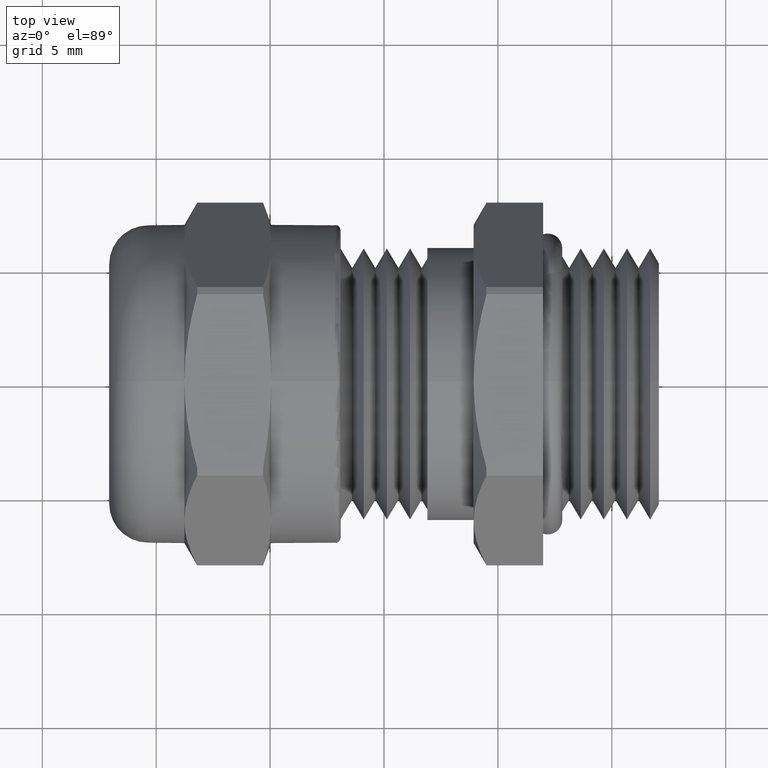
[diagram: clean part render]
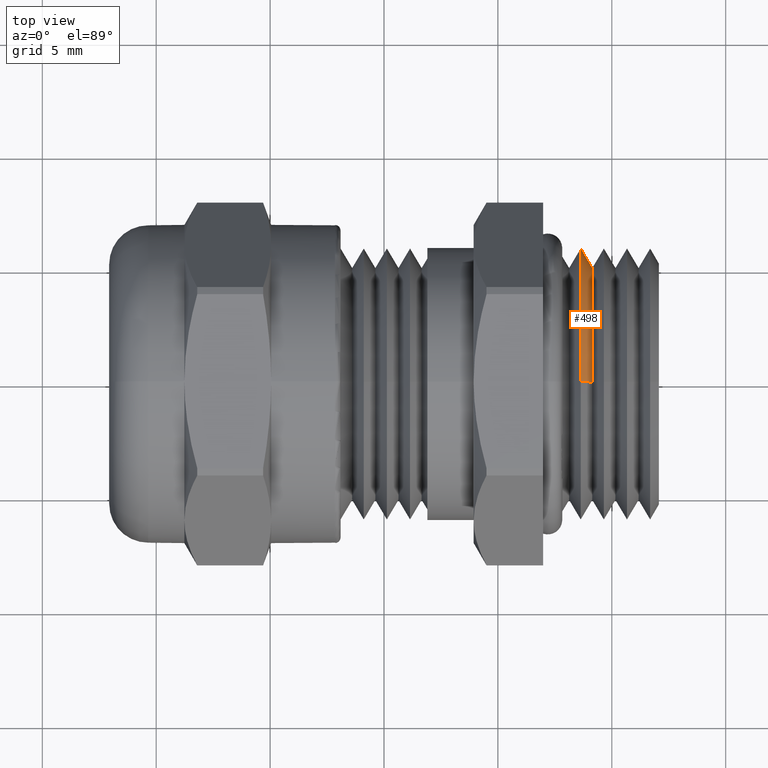
[diagram: same view with one face highlighted and labeled with its STEP entity id]
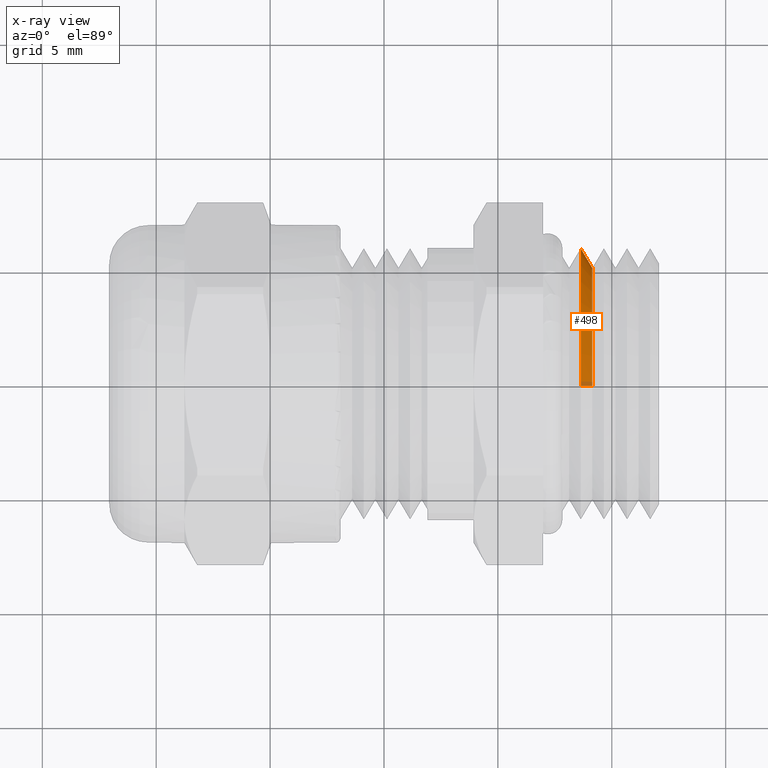
[diagram: x-ray of the same camera — body ghosted, the highlighted face saturated]
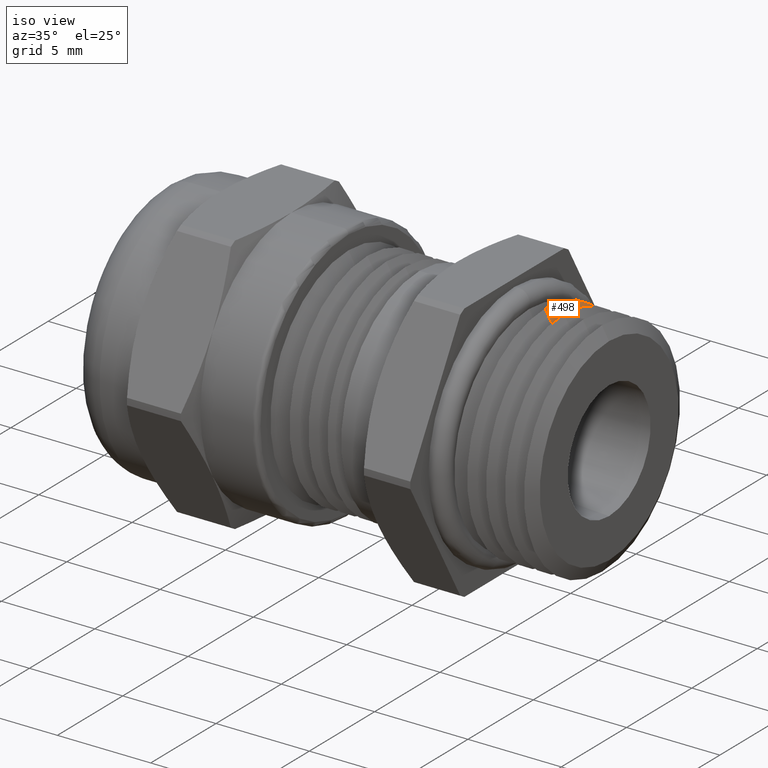
[diagram: same view with one face highlighted and labeled with its STEP entity id]
A machine part, top view. The second image highlights one B-rep face of the part: STEP entity #498.
The next image is the same camera in x-ray: the body ghosted, the highlighted face saturated — about 3% of this face is hidden behind the body in this view.
A second angle (iso view) of the same face is appended — the face is thin or edge-on in the first view.
In plain terms, the highlighted conical surface has half-angle 60.001 deg.
Its self-contained STEP definition (entity closure, byte-faithful):
#27 = VERTEX_POINT ( 'NONE', #1248 ) ;
#28 = EDGE_CURVE ( 'NONE', #29, #27, #1247, .T. ) ;
#29 = VERTEX_POINT ( 'NONE', #1242 ) ;
#339 = EDGE_LOOP ( 'NONE', ( #340, #341, #344, #347 ) ) ;
#340 = ORIENTED_EDGE ( 'NONE', *, *, #28, .T. ) ;
#341 = ORIENTED_EDGE ( 'NONE', *, *, #342, .T. ) ;
#342 = EDGE_CURVE ( 'NONE', #27, #343, #1874, .T. ) ;
#343 = VERTEX_POINT ( 'NONE', #1870 ) ;
#344 = ORIENTED_EDGE ( 'NONE', *, *, #345, .T. ) ;
#345 = EDGE_CURVE ( 'NONE', #343, #346, #1869, .T. ) ;
#346 = VERTEX_POINT ( 'NONE', #1864 ) ;
#347 = ORIENTED_EDGE ( 'NONE', *, *, #348, .F. ) ;
#348 = EDGE_CURVE ( 'NONE', #29, #346, #1863, .T. ) ;
#498 = ADVANCED_FACE ( 'NONE', ( #2171 ), #2169, .T. ) ;
#1242 = CARTESIAN_POINT ( 'NONE',  ( 0.3599993954002118100, 0.0000000000000000000, 0.2003581984504589900 ) ) ;
#1243 = DIRECTION ( 'NONE',  ( 0.0000000000000000000, 0.0000000000000000000, 1.000000000000000000 ) ) ;
#1244 = DIRECTION ( 'NONE',  ( -1.000000000000000000, 0.0000000000000000000, 0.0000000000000000000 ) ) ;
#1245 = CARTESIAN_POINT ( 'NONE',  ( 0.3599993954002118100, 0.0000000000000000000, 0.0000000000000000000 ) ) ;
#1246 = AXIS2_PLACEMENT_3D ( 'NONE', #1245, #1244, #1243 ) ;
#1247 = CIRCLE ( 'NONE', #1246, 0.2003581984504589900 ) ;
#1248 = CARTESIAN_POINT ( 'NONE',  ( 0.3599993954002118100, 2.665793174442872400E-017, -0.2003581984504589900 ) ) ;
#1860 = DIRECTION ( 'NONE',  ( -0.4999848849291451700, 0.0000000000000000000, 0.8660341302987946100 ) ) ;
#1861 = VECTOR ( 'NONE', #1860, 39.37007874015748900 ) ;
#1862 = CARTESIAN_POINT ( 'NONE',  ( 0.3399999999999999100, 0.0000000000000000000, 0.2349995636676869300 ) ) ;
#1863 = LINE ( 'NONE', #1862, #1861 ) ;
#1864 = CARTESIAN_POINT ( 'NONE',  ( 0.3400004030543404800, 0.0000000000000000000, 0.2349988655289514400 ) ) ;
#1865 = DIRECTION ( 'NONE',  ( 0.0000000000000000000, 0.0000000000000000000, 1.000000000000000000 ) ) ;
#1866 = DIRECTION ( 'NONE',  ( 1.000000000000000000, 0.0000000000000000000, 0.0000000000000000000 ) ) ;
#1867 = CARTESIAN_POINT ( 'NONE',  ( 0.3400004030543404800, 0.0000000000000000000, 0.0000000000000000000 ) ) ;
#1868 = AXIS2_PLACEMENT_3D ( 'NONE', #1867, #1866, #1865 ) ;
#1869 = CIRCLE ( 'NONE', #1868, 0.2349988655289514400 ) ;
#1870 = CARTESIAN_POINT ( 'NONE',  ( 0.3400004030543404800, 2.877906084775971200E-017, -0.2349988655289514400 ) ) ;
#1871 = DIRECTION ( 'NONE',  ( -0.4999848849291451700, 1.060585925622780500E-016, -0.8660341302987946100 ) ) ;
#1872 = VECTOR ( 'NONE', #1871, 39.37007874015748900 ) ;
#1873 = CARTESIAN_POINT ( 'NONE',  ( 0.3399999999999999100, 2.877914634466574500E-017, -0.2349995636676869300 ) ) ;
#1874 = LINE ( 'NONE', #1873, #1872 ) ;
#2165 = DIRECTION ( 'NONE',  ( 0.0000000000000000000, 0.0000000000000000000, 1.000000000000000000 ) ) ;
#2166 = DIRECTION ( 'NONE',  ( -1.000000000000000000, 0.0000000000000000000, 0.0000000000000000000 ) ) ;
#2167 = CARTESIAN_POINT ( 'NONE',  ( 0.3399999999999999100, 0.0000000000000000000, 0.0000000000000000000 ) ) ;
#2168 = AXIS2_PLACEMENT_3D ( 'NONE', #2167, #2166, #2165 ) ;
#2169 = CONICAL_SURFACE ( 'NONE', #2168, 0.2349995636676869300, 1.047215004489116900 ) ;
#2171 = FACE_OUTER_BOUND ( 'NONE', #339, .T. ) ;